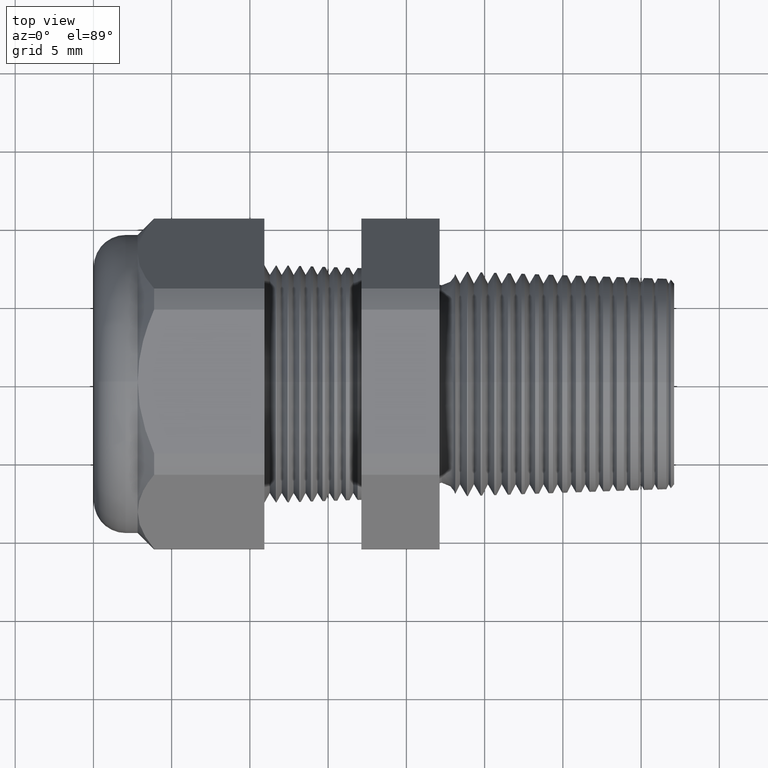
[diagram: clean part render]
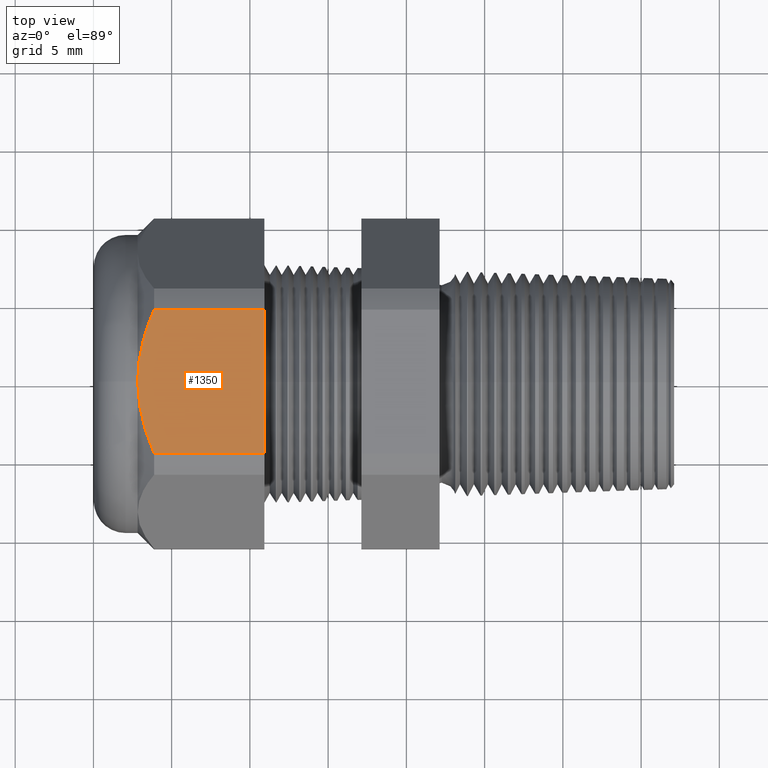
[diagram: same view with one face highlighted and labeled with its STEP entity id]
A machine part, top view. The second image highlights one B-rep face of the part: STEP entity #1350.
In plain terms, the highlighted planar face has unit normal (0, 0, 1).
Its self-contained STEP definition (entity closure, byte-faithful):
#17 = ORIENTED_EDGE ( 'NONE', *, *, #18, .F. ) ;
#18 = EDGE_CURVE ( 'NONE', #1374, #1360, #1963, .T. ) ;
#918 = VERTEX_POINT ( 'NONE', #3494 ) ;
#1350 = ADVANCED_FACE ( 'NONE', ( #4301 ), #4307, .T. ) ;
#1351 = EDGE_LOOP ( 'NONE', ( #1352, #1353, #1355, #1358, #17 ) ) ;
#1352 = ORIENTED_EDGE ( 'NONE', *, *, #1373, .T. ) ;
#1353 = ORIENTED_EDGE ( 'NONE', *, *, #1354, .T. ) ;
#1354 = EDGE_CURVE ( 'NONE', #1371, #918, #4352, .T. ) ;
#1355 = ORIENTED_EDGE ( 'NONE', *, *, #1356, .T. ) ;
#1356 = EDGE_CURVE ( 'NONE', #918, #1357, #4342, .T. ) ;
#1357 = VERTEX_POINT ( 'NONE', #4343 ) ;
#1358 = ORIENTED_EDGE ( 'NONE', *, *, #1359, .F. ) ;
#1359 = EDGE_CURVE ( 'NONE', #1360, #1357, #4335, .T. ) ;
#1360 = VERTEX_POINT ( 'NONE', #4331 ) ;
#1371 = VERTEX_POINT ( 'NONE', #4367 ) ;
#1373 = EDGE_CURVE ( 'NONE', #1374, #1371, #4366, .T. ) ;
#1374 = VERTEX_POINT ( 'NONE', #4362 ) ;
#1956 = DIRECTION ( 'NONE',  ( 0.0000000000000000000, -1.000000000000000000, 0.0000000000000000000 ) ) ;
#1957 = VECTOR ( 'NONE', #1956, 39.37007874015748100 ) ;
#1958 = CARTESIAN_POINT ( 'NONE',  ( -0.7508661417322833900, 0.2999999999999999900, 0.3749999999999999400 ) ) ;
#1963 = LINE ( 'NONE', #1958, #1957 ) ;
#3494 = CARTESIAN_POINT ( 'NONE',  ( -1.069763779527559200, 0.0000000000000000000, 0.3749999999999999400 ) ) ;
#4301 = FACE_OUTER_BOUND ( 'NONE', #1351, .T. ) ;
#4307 = PLANE ( 'NONE',  #4356 ) ;
#4331 = CARTESIAN_POINT ( 'NONE',  ( -0.7508661417322833900, -0.1806628420566886700, 0.3749999999999999400 ) ) ;
#4332 = DIRECTION ( 'NONE',  ( -1.000000000000000000, 0.0000000000000000000, 0.0000000000000000000 ) ) ;
#4333 = VECTOR ( 'NONE', #4332, 39.37007874015748100 ) ;
#4334 = CARTESIAN_POINT ( 'NONE',  ( 0.2800000000000000300, -0.1806628420566886700, 0.3749999999999999400 ) ) ;
#4335 = LINE ( 'NONE', #4334, #4333 ) ;
#4336 = CARTESIAN_POINT ( 'NONE',  ( -1.028513779527559200, -0.1806628420566886700, 0.3749999999999999400 ) ) ;
#4337 = CARTESIAN_POINT ( 'NONE',  ( -1.040864619919063900, -0.1522063135617434400, 0.3749999999999998900 ) ) ;
#4338 = CARTESIAN_POINT ( 'NONE',  ( -1.051374803848830600, -0.1224209746056500500, 0.3750000000000001100 ) ) ;
#4339 = CARTESIAN_POINT ( 'NONE',  ( -1.065781561248279700, -0.06212512060126275400, 0.3750000000000000600 ) ) ;
#4340 = CARTESIAN_POINT ( 'NONE',  ( -1.069763779527559200, -0.03141195411055334300, 0.3750000000000000600 ) ) ;
#4341 = CARTESIAN_POINT ( 'NONE',  ( -1.069763779527559200, 0.0000000000000000000, 0.3749999999999999400 ) ) ;
#4342 = B_SPLINE_CURVE_WITH_KNOTS ( 'NONE', 3,
 ( #4341, #4340, #4339, #4338, #4337, #4336 ),
 .UNSPECIFIED., .F., .F.,
 ( 4, 2, 4 ),
 ( 0.01191928708821687900, 0.01426783552382355200, 0.01661638395943022500 ),
 .UNSPECIFIED. ) ;
#4343 = CARTESIAN_POINT ( 'NONE',  ( -1.028513779527559200, -0.1806628420566886700, 0.3749999999999999400 ) ) ;
#4344 = CARTESIAN_POINT ( 'NONE',  ( -1.069763779527559200, 0.0000000000000000000, 0.3749999999999999400 ) ) ;
#4345 = CARTESIAN_POINT ( 'NONE',  ( -1.069763779527559200, 0.01568637131276644200, 0.3749999999999999400 ) ) ;
#4346 = CARTESIAN_POINT ( 'NONE',  ( -1.068769479952294000, 0.03130286613836864900, 0.3749999999999999400 ) ) ;
#4347 = CARTESIAN_POINT ( 'NONE',  ( -1.064967165678735200, 0.06207756443688124800, 0.3749999999999999400 ) ) ;
#4348 = CARTESIAN_POINT ( 'NONE',  ( -1.062160678549065400, 0.07729185397029274300, 0.3749999999999999400 ) ) ;
#4349 = CARTESIAN_POINT ( 'NONE',  ( -1.051355067212263600, 0.1224785947535364200, 0.3749999999999998300 ) ) ;
#4350 = CARTESIAN_POINT ( 'NONE',  ( -1.040859887633265100, 0.1522172168218790500, 0.3749999999999998900 ) ) ;
#4351 = CARTESIAN_POINT ( 'NONE',  ( -1.028513779527559200, 0.1806628420566886700, 0.3749999999999999400 ) ) ;
#4352 = B_SPLINE_CURVE_WITH_KNOTS ( 'NONE', 3,
 ( #4351, #4350, #4349, #4348, #4347, #4346, #4345, #4344 ),
 .UNSPECIFIED., .F., .F.,
 ( 4, 2, 2, 4 ),
 ( 0.007228053594460295100, 0.009573670341338587000, 0.01074647871477773400, 0.01191928708821687900 ),
 .UNSPECIFIED. ) ;
#4353 = DIRECTION ( 'NONE',  ( 1.000000000000000000, 0.0000000000000000000, 0.0000000000000000000 ) ) ;
#4354 = DIRECTION ( 'NONE',  ( 0.0000000000000000000, 0.0000000000000000000, 1.000000000000000000 ) ) ;
#4355 = CARTESIAN_POINT ( 'NONE',  ( 0.2800000000000000300, -0.1806628420566887000, 0.3749999999999999400 ) ) ;
#4356 = AXIS2_PLACEMENT_3D ( 'NONE', #4355, #4354, #4353 ) ;
#4362 = CARTESIAN_POINT ( 'NONE',  ( -0.7508661417322833900, 0.1806628420566887000, 0.3749999999999999400 ) ) ;
#4363 = DIRECTION ( 'NONE',  ( -1.000000000000000000, 0.0000000000000000000, 0.0000000000000000000 ) ) ;
#4364 = VECTOR ( 'NONE', #4363, 39.37007874015748100 ) ;
#4365 = CARTESIAN_POINT ( 'NONE',  ( 0.2800000000000000300, 0.1806628420566887000, 0.3749999999999999400 ) ) ;
#4366 = LINE ( 'NONE', #4365, #4364 ) ;
#4367 = CARTESIAN_POINT ( 'NONE',  ( -1.028513779527559200, 0.1806628420566886700, 0.3749999999999999400 ) ) ;